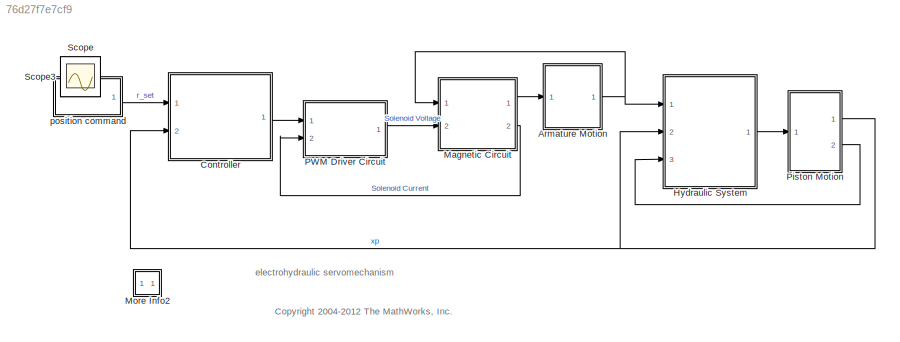
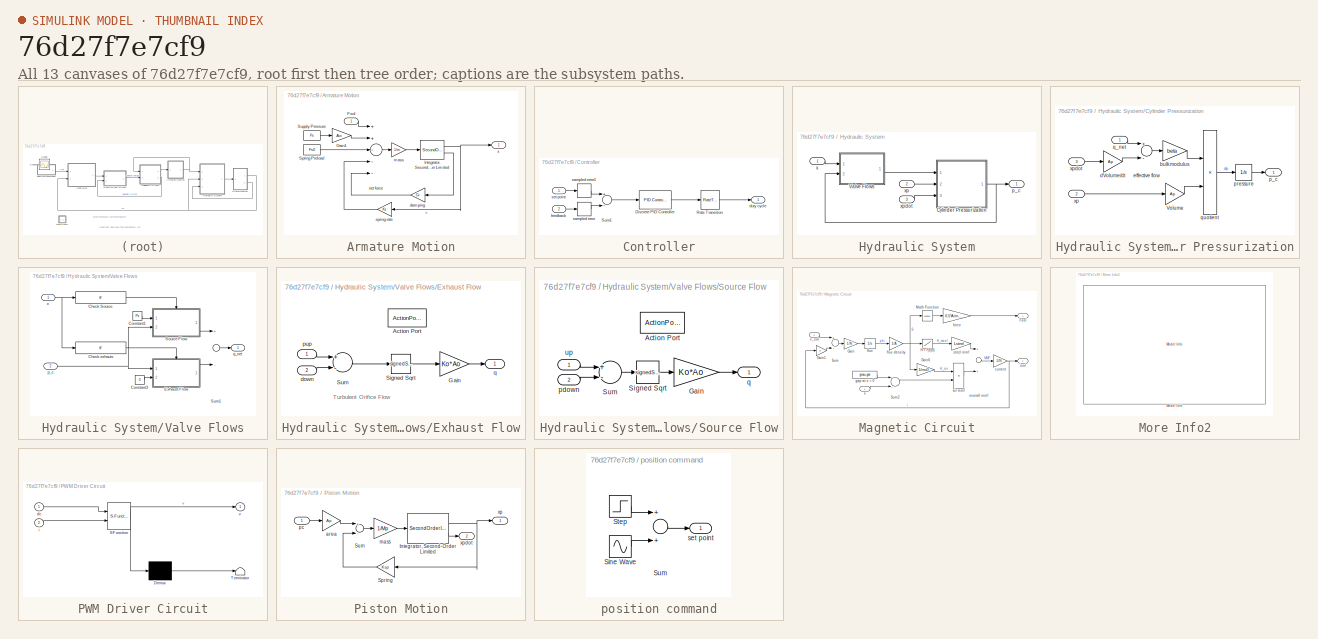
[diagram: thumbnail index - all 13 canvases of the model, root first then tree order]
MODEL slx_76d27f7e7cf9
KIND model
CONFIG AbsTol = auto
CONFIG EnableMultiTasking = off
CONFIG FixedStep = 0.2e-4
CONFIG MaxStep = auto
CONFIG MinStep = auto
CONFIG PreLoadFcn = sf_electrohydraulic_data
CONFIG RelTol = 1e-6
CONFIG SampleTimeConstraint = Unconstrained
CONFIG Solver = ode45
CONFIG SolverName = ode45
CONFIG StartTime = 0.0
CONFIG StopTime = 2
WORKSPACE source: MAT-file member
WORKSPACE BHcurve: struct (value not decoded)
BLOCK [SubSystem] Armature Motion
  Ports = [1, 1]
  RequestExecContextInheritance = off
  Variant = off
BLOCK [Inport] Armature Motion/Fsol
  IconDisplay = Port number
BLOCK [Gain] Armature Motion/Gain1
  Gain = Ao
BLOCK [SecondOrderIntegrator] Armature Motion/Integrator, Second-Order Limited
  LimitX = on
  LowerLimitX = 0
  Ports = [1, 2]
  UpperLimitX = gmax - gmin
BLOCK [Constant] Armature Motion/Spring Preload
  Value = Fs0
BLOCK [Constant] Armature Motion/Supply Pressure
  Value = Ps
BLOCK [Gain] Armature Motion/damping
  Gain = Cv
BLOCK [Gain] Armature Motion/mass
  Gain = 1/m
BLOCK [Sum] Armature Motion/net force
  Inputs = ++---
  Ports = [5, 1]
BLOCK [Gain] Armature Motion/spring rate
  Gain = Ks
BLOCK [Outport] Armature Motion/x
  IconDisplay = Port number
BLOCK [SubSystem] Controller
  Ports = [2, 1]
  RequestExecContextInheritance = off
  Variant = off
BLOCK [Reference] Controller/Discrete PID Controller  REF=simulink/Continuous/PID Controller
  Ports = [1, 1]
  SourceBlock = simulink/Continuous/PID Controller
  SourceProductBaseCode = SL
  SourceProductName = Simulink
  SourceType = PID 1dof
BLOCK [RateTransition] Controller/Rate Transition
  Integrity = off
BLOCK [Sum] Controller/Sum1
  Inputs = +-
  Ports = [2, 1]
BLOCK [Outport] Controller/duty cycle
  IconDisplay = Port number
BLOCK [Inport] Controller/feedback
  IconDisplay = Port number
  Port = 2
BLOCK [ZeroOrderHold] Controller/sampled error
  SampleTime = Tpwm
BLOCK [ZeroOrderHold] Controller/sampled error1
  SampleTime = Tpwm
BLOCK [Inport] Controller/set point
  IconDisplay = Port number
BLOCK [SubSystem] Hydraulic System
  Ports = [3, 1]
  RequestExecContextInheritance = off
  Variant = off
BLOCK [SubSystem] Hydraulic System/Cylinder Pressurization
  Ports = [3, 1]
  RequestExecContextInheritance = off
  Variant = off
BLOCK [Gain] Hydraulic System/Cylinder Pressurization/Volume
  Gain = Ap
BLOCK [Gain] Hydraulic System/Cylinder Pressurization/bulk modulus
  Gain = beta
BLOCK [Gain] Hydraulic System/Cylinder Pressurization/dVolume//dt
  Gain = Ap
BLOCK [Sum] Hydraulic System/Cylinder Pressurization/effective flow
  Inputs = +-
  Ports = [2, 1]
BLOCK [Outport] Hydraulic System/Cylinder Pressurization/p_c
  IconDisplay = Port number
BLOCK [Integrator] Hydraulic System/Cylinder Pressurization/pressure
  LimitOutput = on
  LowerSaturationLimit = 0
  Ports = [1, 1]
BLOCK [Inport] Hydraulic System/Cylinder Pressurization/q_net
  IconDisplay = Port number
BLOCK [Product] Hydraulic System/Cylinder Pressurization/quotient
  Inputs = */
  Ports = [2, 1]
BLOCK [Inport] Hydraulic System/Cylinder Pressurization/xp
  IconDisplay = Port number
  Port = 2
BLOCK [Inport] Hydraulic System/Cylinder Pressurization/xpdot
  IconDisplay = Port number
  Port = 3
BLOCK [SubSystem] Hydraulic System/Valve Flows
  Ports = [2, 1]
  RequestExecContextInheritance = off
  Variant = off
BLOCK [If] Hydraulic System/Valve Flows/Check Source
  Ports = [1, 1]
  ShowElse = off
BLOCK [If] Hydraulic System/Valve Flows/Check exhauts
  IfExpression = u1 < balltravel
  Ports = [1, 1]
  ShowElse = off
BLOCK [Constant] Hydraulic System/Valve Flows/Constant1
  Value = Ps
BLOCK [Constant] Hydraulic System/Valve Flows/Constant3
  Value = 0
BLOCK [SubSystem] Hydraulic System/Valve Flows/Exhaust Flow
  Ports = [2, 1, 0, 0, 0, 0, 0, 1]
  RequestExecContextInheritance = off
  Variant = off
BLOCK [ActionPort] Hydraulic System/Valve Flows/Exhaust Flow/Action Port
  ActionType = then
BLOCK [Gain] Hydraulic System/Valve Flows/Exhaust Flow/Gain
  Gain = Ko*Ao
BLOCK [Sqrt] Hydraulic System/Valve Flows/Exhaust Flow/Signed Sqrt
  AlgorithmType = Newton-Raphson
  Operator = signedSqrt
BLOCK [Sum] Hydraulic System/Valve Flows/Exhaust Flow/Sum
  Inputs = +-
  Ports = [2, 1]
BLOCK [Inport] Hydraulic System/Valve Flows/Exhaust Flow/down
  IconDisplay = Port number
  Port = 2
BLOCK [Inport] Hydraulic System/Valve Flows/Exhaust Flow/pup
  IconDisplay = Port number
BLOCK [Outport] Hydraulic System/Valve Flows/Exhaust Flow/q
  IconDisplay = Port number
  InitialOutput = 0
  OutputWhenDisabled = reset
BLOCK [SubSystem] Hydraulic System/Valve Flows/Source Flow
  Ports = [2, 1, 0, 0, 0, 0, 0, 1]
  RequestExecContextInheritance = off
  Variant = off
BLOCK [ActionPort] Hydraulic System/Valve Flows/Source Flow/Action Port
  ActionType = then
BLOCK [Gain] Hydraulic System/Valve Flows/Source Flow/Gain
  Gain = Ko*Ao
BLOCK [Sqrt] Hydraulic System/Valve Flows/Source Flow/Signed Sqrt
  AlgorithmType = Newton-Raphson
  Operator = signedSqrt
BLOCK [Sum] Hydraulic System/Valve Flows/Source Flow/Sum
  Inputs = +-
  Ports = [2, 1]
BLOCK [Inport] Hydraulic System/Valve Flows/Source Flow/pdown
  IconDisplay = Port number
  Port = 2
BLOCK [Outport] Hydraulic System/Valve Flows/Source Flow/q
  IconDisplay = Port number
  InitialOutput = 0
  OutputWhenDisabled = reset
BLOCK [Inport] Hydraulic System/Valve Flows/Source Flow/up
  IconDisplay = Port number
BLOCK [Sum] Hydraulic System/Valve Flows/Sum1
  Inputs = +-
  Ports = [2, 1]
BLOCK [Inport] Hydraulic System/Valve Flows/p_c
  IconDisplay = Port number
  Port = 2
BLOCK [Outport] Hydraulic System/Valve Flows/q_net
  IconDisplay = Port number
BLOCK [Inport] Hydraulic System/Valve Flows/x
  IconDisplay = Port number
BLOCK [Outport] Hydraulic System/p_c
  IconDisplay = Port number
BLOCK [Inport] Hydraulic System/x
  IconDisplay = Port number
BLOCK [Inport] Hydraulic System/xp
  IconDisplay = Port number
  Port = 2
BLOCK [Inport] Hydraulic System/xpdot
  IconDisplay = Port number
  Port = 3
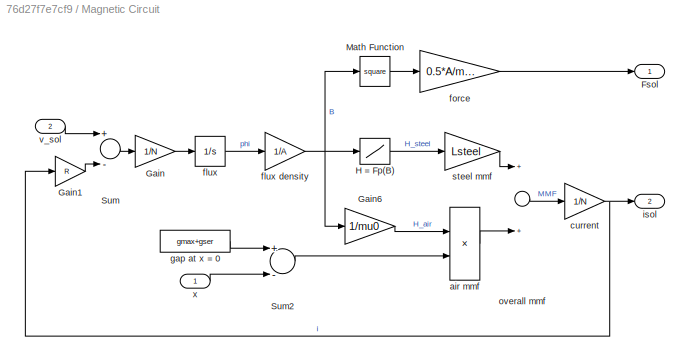
BLOCK [SubSystem] Magnetic Circuit
  Ports = [2, 2]
  RequestExecContextInheritance = off
  Variant = off
BLOCK [Outport] Magnetic Circuit/Fsol
  IconDisplay = Port number
BLOCK [Gain] Magnetic Circuit/Gain
  Gain = 1/N
BLOCK [Gain] Magnetic Circuit/Gain1
  Gain = R
BLOCK [Gain] Magnetic Circuit/Gain6
  Gain = 1/mu0
BLOCK [Lookup] Magnetic Circuit/H = Fp(B)
  InputValues = BHcurve.B
  SaturateOnIntegerOverflow = off
  Table = 0.5*(BHcurve.Hp+BHcurve.Hn)
BLOCK [Math] Magnetic Circuit/Math Function
  Operator = square
  Ports = [1, 1]
BLOCK [Sum] Magnetic Circuit/Sum
  Inputs = +-
  Ports = [2, 1]
BLOCK [Sum] Magnetic Circuit/Sum2
  Inputs = +-
  Ports = [2, 1]
BLOCK [Product] Magnetic Circuit/air mmf
  Ports = [2, 1]
BLOCK [Gain] Magnetic Circuit/current
  Gain = 1/N
BLOCK [Integrator] Magnetic Circuit/flux
  LowerSaturationLimit = 0
  Ports = [1, 1]
BLOCK [Gain] Magnetic Circuit/flux density
  Gain = 1/A
BLOCK [Gain] Magnetic Circuit/force
  Gain = 0.5*A/mu0
BLOCK [Constant] Magnetic Circuit/gap at x = 0
  Value = gmax+gser
BLOCK [Outport] Magnetic Circuit/isol
  IconDisplay = Port number
  Port = 2
BLOCK [Sum] Magnetic Circuit/overall mmf
  Ports = [2, 1]
BLOCK [Gain] Magnetic Circuit/steel mmf
  Gain = Lsteel
BLOCK [Inport] Magnetic Circuit/v_sol
  IconDisplay = Port number
  Port = 2
BLOCK [Inport] Magnetic Circuit/x
  IconDisplay = Port number
BLOCK [SubSystem] More Info2
  OpenFcn = showdemo(bdroot(gcs))
  Ports = []
  RequestExecContextInheritance = off
  Variant = off
BLOCK [Reference] More Info2/Model Info  REF=simulink/Model-Wide
Utilities/Model Info
  Ports = []
  SourceBlock = simulink/Model-Wide\nUtilities/Model Info
  SourceProductBaseCode = SL
  SourceProductName = Simulink
  SourceType = CMBlock
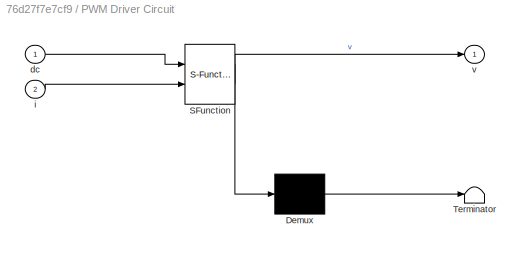
BLOCK [SubSystem] PWM Driver Circuit
  ErrorFcn = Stateflow.Translate.translate
  PermitHierarchicalResolution = ExplicitOnly
  Ports = [2, 1]
  RequestExecContextInheritance = off
  SFBlockType = Chart
  TreatAsAtomicUnit = on
  Variant = off
BLOCK [Demux] PWM Driver Circuit/ Demux 
  Outputs = 1
  Ports = [1, 1]
BLOCK [S-Function] PWM Driver Circuit/ SFunction 
  EnableBusSupport = off
  FunctionName = sf_sfun
  Parameters = Ihold,Ipull,Tpwm,Vd,Vs,Vz,deltai
  PortCounts = [2 2]
  Ports = [2, 2]
  SFcnIsStateOwnerBlock = off
  SFunctionDeploymentMode = off
  Tag = Stateflow S-Function sf_electrohydraulic 2
BLOCK [Terminator] PWM Driver Circuit/ Terminator 
BLOCK [Inport] PWM Driver Circuit/dc
  IconDisplay = Port number
BLOCK [Inport] PWM Driver Circuit/i
  IconDisplay = Port number
  Port = 2
BLOCK [Outport] PWM Driver Circuit/v
  IconDisplay = Port number
BLOCK [SubSystem] Piston Motion
  Ports = [1, 2]
  RequestExecContextInheritance = off
  Variant = off
BLOCK [SecondOrderIntegrator] Piston Motion/Integrator, Second-Order Limited
  ICX = xpmin
  LimitX = on
  LowerLimitX = xpmin
  Ports = [1, 2]
  StateNameDXDT = 'PistonVelocity'
  StateNameX = 'PistonPosition'
  UpperLimitX = xpmax
BLOCK [Gain] Piston Motion/Spring
  Gain = Ksp
BLOCK [Sum] Piston Motion/Sum
  Inputs = +-
  Ports = [2, 1]
BLOCK [Gain] Piston Motion/area
  Gain = Ap
BLOCK [Gain] Piston Motion/mass
  Gain = 1/Mp
BLOCK [Inport] Piston Motion/pc
  IconDisplay = Port number
BLOCK [Outport] Piston Motion/xp
  IconDisplay = Port number
BLOCK [Outport] Piston Motion/xpdot
  IconDisplay = Port number
  Port = 2
BLOCK [Scope] Scope
  IOType = viewer
  NumInputPorts = 1
  Ports = []
  ScopeSpecificationString = Simulink.scopes.TimeScopeBlockCfg('CurrentConfiguration', extmgr.ConfigurationSet(extmgr.Configuration('Core','General UI',true),extmgr.Configuration('Core','Source UI',true),extmgr.Configuration('Sources','WiredSimulink',true,'DataLoggingMaxPoints','7500','DataLoggingLimitDataPoints',true,'DataLoggingSaveFormat','Array','DataLoggingDecimation','1','DataLoggingDecimateData',true),extmgr.Configurat...<+1713ch>
BLOCK [Scope] Scope3
  IOType = viewer
  NumInputPorts = 1
  Ports = []
  ScopeSpecificationString = Simulink.scopes.TimeScopeBlockCfg('CurrentConfiguration', extmgr.ConfigurationSet(extmgr.Configuration('Core','General UI',true),extmgr.Configuration('Core','Source UI',true),extmgr.Configuration('Sources','WiredSimulink',true,'DataLoggingVariableName','ScopeData3','DataLoggingMaxPoints','7500','DataLoggingSaveFormat','Array','DataLoggingDecimation','1','DataLoggingDecimateData',true),extmgr.Confi...<+1713ch>
BLOCK [SubSystem] position command
  Ports = [0, 1]
  RequestExecContextInheritance = off
  Variant = off
BLOCK [Sin] position command/Sine Wave
  Amplitude = 2e-3
  Frequency = 3*2*pi
  Ports = [0, 1]
  SampleTime = 0
BLOCK [Step] position command/Step
  After = 0.015
  Before = 0.01
  SampleTime = 0
BLOCK [Sum] position command/Sum
  Ports = [2, 1]
BLOCK [Outport] position command/set point
  IconDisplay = Port number
ANNOTATION (root): <copyright redacted>
ANNOTATION (root): electrohydraulic servomechanism
ANNOTATION Hydraulic System/Valve Flows/Exhaust Flow: Turbulent Orifice Flow
LINE Armature Motion/Fsol:1 -> Armature Motion/net force:1
LINE Armature Motion/Gain1:1 -> Armature Motion/net force:2
NET Armature Motion/Integrator, Second-Order Limited:1 -> Armature Motion/spring rate:1, Armature Motion/x:1
LINE Armature Motion/Integrator, Second-Order Limited:2 -> Armature Motion/damping:1
LINE Armature Motion/Spring Preload:1 -> Armature Motion/net force:3
LINE Armature Motion/Supply Pressure:1 -> Armature Motion/Gain1:1
LINE Armature Motion/damping:1 -> Armature Motion/net force:5
LINE Armature Motion/mass:1 -> Armature Motion/Integrator, Second-Order Limited:1
LINE Armature Motion/net force:1 -> Armature Motion/mass:1
LINE Armature Motion/spring rate:1 -> Armature Motion/net force:4
NET Armature Motion:1 -> Hydraulic System:1, Magnetic Circuit:1
LINE Controller/Discrete PID Controller:1 -> Controller/Rate Transition:1
LINE Controller/Rate Transition:1 -> Controller/duty cycle:1
LINE Controller/Sum1:1 -> Controller/Discrete PID Controller:1
LINE Controller/feedback:1 -> Controller/sampled error:1
LINE Controller/sampled error1:1 -> Controller/Sum1:1
LINE Controller/sampled error:1 -> Controller/Sum1:2
LINE Controller/set point:1 -> Controller/sampled error1:1
LINE Controller:1 -> PWM Driver Circuit:1
LINE Hydraulic System/Cylinder Pressurization/Volume:1 -> Hydraulic System/Cylinder Pressurization/quotient:2
LINE Hydraulic System/Cylinder Pressurization/bulk modulus:1 -> Hydraulic System/Cylinder Pressurization/quotient:1
LINE Hydraulic System/Cylinder Pressurization/dVolume//dt:1 -> Hydraulic System/Cylinder Pressurization/effective flow:2
LINE Hydraulic System/Cylinder Pressurization/effective flow:1 -> Hydraulic System/Cylinder Pressurization/bulk modulus:1
LINE Hydraulic System/Cylinder Pressurization/pressure:1 -> Hydraulic System/Cylinder Pressurization/p_c:1
LINE Hydraulic System/Cylinder Pressurization/q_net:1 -> Hydraulic System/Cylinder Pressurization/effective flow:1
LINE Hydraulic System/Cylinder Pressurization/quotient:1 -> Hydraulic System/Cylinder Pressurization/pressure:1
LINE Hydraulic System/Cylinder Pressurization/xp:1 -> Hydraulic System/Cylinder Pressurization/Volume:1
LINE Hydraulic System/Cylinder Pressurization/xpdot:1 -> Hydraulic System/Cylinder Pressurization/dVolume//dt:1
NET Hydraulic System/Cylinder Pressurization:1 -> Hydraulic System/Valve Flows:2, Hydraulic System/p_c:1
LINE Hydraulic System/Valve Flows/Check Source:1 -> Hydraulic System/Valve Flows/Source Flow:ifaction
LINE Hydraulic System/Valve Flows/Check exhauts:1 -> Hydraulic System/Valve Flows/Exhaust Flow:ifaction
LINE Hydraulic System/Valve Flows/Constant1:1 -> Hydraulic System/Valve Flows/Source Flow:1
LINE Hydraulic System/Valve Flows/Constant3:1 -> Hydraulic System/Valve Flows/Exhaust Flow:2
LINE Hydraulic System/Valve Flows/Exhaust Flow/Gain:1 -> Hydraulic System/Valve Flows/Exhaust Flow/q:1
LINE Hydraulic System/Valve Flows/Exhaust Flow/Signed Sqrt:1 -> Hydraulic System/Valve Flows/Exhaust Flow/Gain:1
LINE Hydraulic System/Valve Flows/Exhaust Flow/Sum:1 -> Hydraulic System/Valve Flows/Exhaust Flow/Signed Sqrt:1
LINE Hydraulic System/Valve Flows/Exhaust Flow/down:1 -> Hydraulic System/Valve Flows/Exhaust Flow/Sum:2
LINE Hydraulic System/Valve Flows/Exhaust Flow/pup:1 -> Hydraulic System/Valve Flows/Exhaust Flow/Sum:1
LINE Hydraulic System/Valve Flows/Exhaust Flow:1 -> Hydraulic System/Valve Flows/Sum1:2
LINE Hydraulic System/Valve Flows/Source Flow/Gain:1 -> Hydraulic System/Valve Flows/Source Flow/q:1
LINE Hydraulic System/Valve Flows/Source Flow/Signed Sqrt:1 -> Hydraulic System/Valve Flows/Source Flow/Gain:1
LINE Hydraulic System/Valve Flows/Source Flow/Sum:1 -> Hydraulic System/Valve Flows/Source Flow/Signed Sqrt:1
LINE Hydraulic System/Valve Flows/Source Flow/pdown:1 -> Hydraulic System/Valve Flows/Source Flow/Sum:2
LINE Hydraulic System/Valve Flows/Source Flow/up:1 -> Hydraulic System/Valve Flows/Source Flow/Sum:1
LINE Hydraulic System/Valve Flows/Source Flow:1 -> Hydraulic System/Valve Flows/Sum1:1
LINE Hydraulic System/Valve Flows/Sum1:1 -> Hydraulic System/Valve Flows/q_net:1
NET Hydraulic System/Valve Flows/p_c:1 -> Hydraulic System/Valve Flows/Exhaust Flow:1, Hydraulic System/Valve Flows/Source Flow:2
NET Hydraulic System/Valve Flows/x:1 -> Hydraulic System/Valve Flows/Check Source:1, Hydraulic System/Valve Flows/Check exhauts:1
LINE Hydraulic System/Valve Flows:1 -> Hydraulic System/Cylinder Pressurization:1
LINE Hydraulic System/x:1 -> Hydraulic System/Valve Flows:1
LINE Hydraulic System/xp:1 -> Hydraulic System/Cylinder Pressurization:2
LINE Hydraulic System/xpdot:1 -> Hydraulic System/Cylinder Pressurization:3
LINE Hydraulic System:1 -> Piston Motion:1
LINE Magnetic Circuit/Gain1:1 -> Magnetic Circuit/Sum:2
LINE Magnetic Circuit/Gain6:1 -> Magnetic Circuit/air mmf:1
LINE Magnetic Circuit/Gain:1 -> Magnetic Circuit/flux:1
LINE Magnetic Circuit/H = Fp(B):1 -> Magnetic Circuit/steel mmf:1
LINE Magnetic Circuit/Math Function:1 -> Magnetic Circuit/force:1
LINE Magnetic Circuit/Sum2:1 -> Magnetic Circuit/air mmf:2
LINE Magnetic Circuit/Sum:1 -> Magnetic Circuit/Gain:1
LINE Magnetic Circuit/air mmf:1 -> Magnetic Circuit/overall mmf:2
NET Magnetic Circuit/current:1 -> Magnetic Circuit/Gain1:1, Magnetic Circuit/isol:1
NET Magnetic Circuit/flux density:1 -> Magnetic Circuit/Gain6:1, Magnetic Circuit/H = Fp(B):1, Magnetic Circuit/Math Function:1
LINE Magnetic Circuit/flux:1 -> Magnetic Circuit/flux density:1
LINE Magnetic Circuit/force:1 -> Magnetic Circuit/Fsol:1
LINE Magnetic Circuit/gap at x = 0:1 -> Magnetic Circuit/Sum2:1
LINE Magnetic Circuit/overall mmf:1 -> Magnetic Circuit/current:1
LINE Magnetic Circuit/steel mmf:1 -> Magnetic Circuit/overall mmf:1
LINE Magnetic Circuit/v_sol:1 -> Magnetic Circuit/Sum:1
LINE Magnetic Circuit/x:1 -> Magnetic Circuit/Sum2:2
LINE Magnetic Circuit:1 -> Armature Motion:1
LINE Magnetic Circuit:2 -> PWM Driver Circuit:2
LINE PWM Driver Circuit:1 -> Magnetic Circuit:2
NET Piston Motion/Integrator, Second-Order Limited:1 -> Piston Motion/Spring:1, Piston Motion/xp:1
LINE Piston Motion/Integrator, Second-Order Limited:2 -> Piston Motion/xpdot:1
LINE Piston Motion/Spring:1 -> Piston Motion/Sum:2
LINE Piston Motion/Sum:1 -> Piston Motion/mass:1
LINE Piston Motion/area:1 -> Piston Motion/Sum:1
LINE Piston Motion/mass:1 -> Piston Motion/Integrator, Second-Order Limited:1
LINE Piston Motion/pc:1 -> Piston Motion/area:1
NET Piston Motion:1 -> Controller:2, Hydraulic System:2
LINE Piston Motion:2 -> Hydraulic System:3
LINE position command/Sine Wave:1 -> position command/Sum:2
LINE position command/Step:1 -> position command/Sum:1
LINE position command/Sum:1 -> position command/set point:1
LINE position command:1 -> Controller:1
note: NET lines group one-source signal fan-out (src -> all destinations, sorted); 1:1 wires keep LINE
CHART PWM Driver Circuit states=9 transitions=11
  STATE_LABEL 'Main'
  STATE_LABEL 'ON'
  STATE_LABEL 'pull_in_current\nentry : v = Vs;'
  STATE_LABEL 'regulate_hold_current'
  STATE_LABEL 'freewheel\nentry: v = -Vd;'
  STATE_LABEL 'hold/\nentry : v = Vs;'
  STATE_LABEL '[ i <= Ihold - deltai ]'
  STATE_LABEL '[ i >= Ihold + deltai ]'
  STATE_LABEL '[ i >= Ipull ]'
  STATE_LABEL 'OFF'
  STATE_LABEL 'Solenoid_OFF\nentry : v = 0;'
  STATE_LABEL 'Discharge_Solenoid\nentry : v = -Vz;'
  STATE_LABEL '[i < 0]'
  STATE_LABEL '{ toff = ton + dc*Tpwm/100; }'
  STATE_LABEL '[ t >= ton ]'
  STATE_LABEL '[ t > toff ]\n{ ton += Tpwm;}'
  STATE_LABEL 'ON'
  STATE_LABEL 'pull_in_current\nentry : v = Vs;'
  STATE_LABEL 'regulate_hold_current'
  STATE_LABEL 'freewheel\nentry: v = -Vd;'
  STATE_LABEL 'hold/\nentry : v = Vs;'
  STATE_LABEL '[ i <= Ihold - deltai ]'
  STATE_LABEL '[ i >= Ihold + deltai ]'
  STATE_LABEL '[ i >= Ipull ]'
  STATE_LABEL 'pull_in_current\nentry : v = Vs;'
  STATE_LABEL 'regulate_hold_current'
  STATE_LABEL 'freewheel\nentry: v = -Vd;'
  STATE_LABEL 'hold/\nentry : v = Vs;'
  STATE_LABEL '[ i <= Ihold - deltai ]'
  STATE_LABEL '[ i >= Ihold + deltai ]'
  STATE_LABEL 'freewheel\nentry: v = -Vd;'
  STATE_LABEL 'hold/\nentry : v = Vs;'
  STATE_LABEL 'OFF'
  STATE_LABEL 'Solenoid_OFF\nentry : v = 0;'
  STATE_LABEL 'Discharge_Solenoid\nentry : v = -Vz;'
  STATE_LABEL '[i < 0]'
  STATE_LABEL 'Solenoid_OFF\nentry : v = 0;'
  STATE_LABEL 'Discharge_Solenoid\nentry : v = -Vz;'
